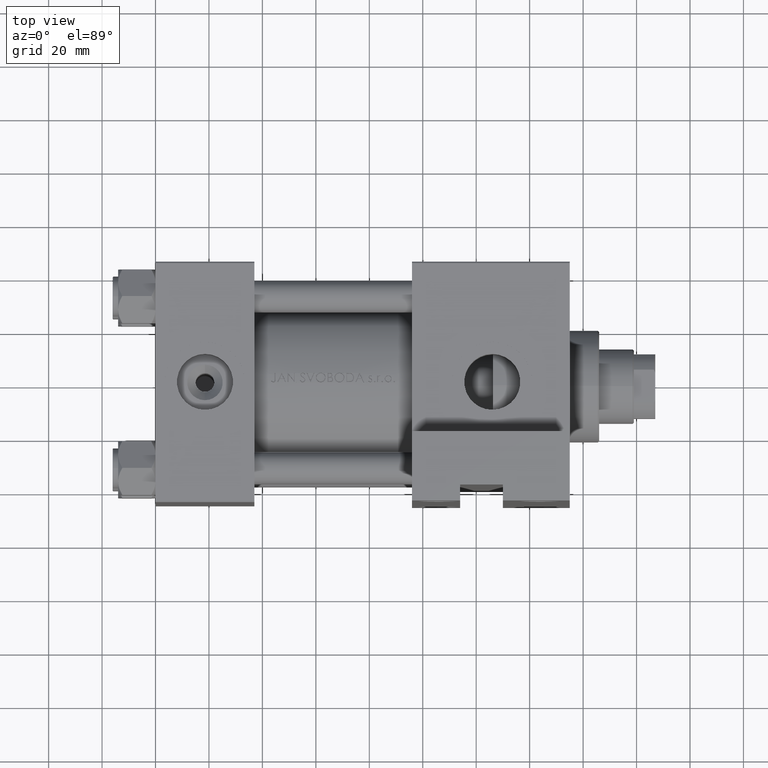
[diagram: clean part render]
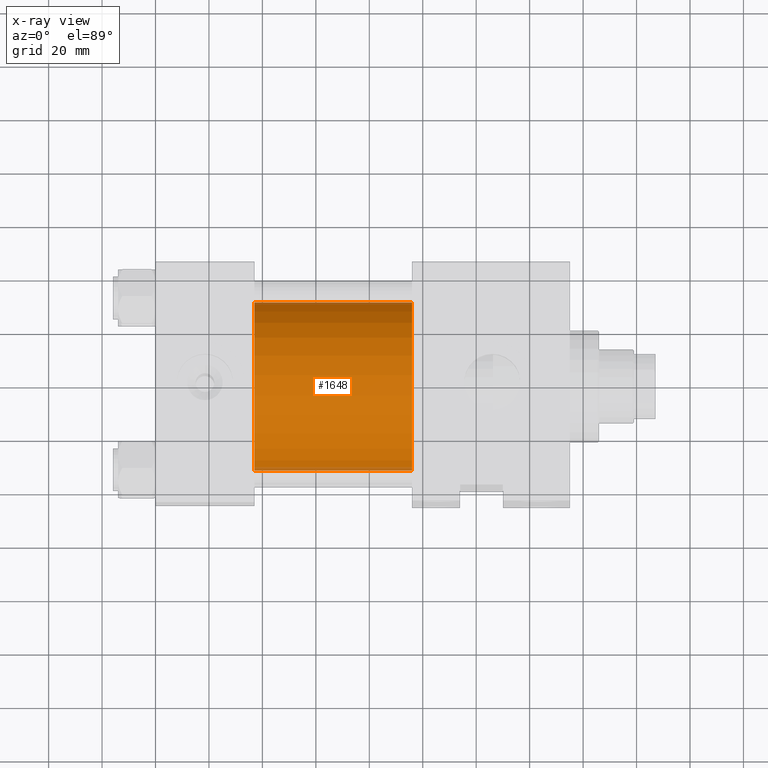
[diagram: x-ray — body ghosted, one internal face saturated and labeled with its STEP entity id]
A machine part, top view, then the same camera in x-ray: the body is ghosted and one INTERNAL B-rep face — a face not visible from any outside direction — is saturated and labeled: STEP entity #1648.
In plain terms, the highlighted cylindrical surface (partial cylindrical patch) has radius 31.5 mm, axis along (-1, -0, 0).
Its self-contained STEP definition (entity closure, byte-faithful):
#827 = CARTESIAN_POINT ( 'NONE',  ( 37.00000000000000000, 3.857637417314162689E-15, -32.50000000000000711 ) ) ;
#1648 = ADVANCED_FACE ( 'NONE', ( #48416 ), #25785, .F. ) ;
#2367 = ORIENTED_EDGE ( 'NONE', *, *, #48580, .T. ) ;
#5176 = EDGE_CURVE ( 'NONE', #29462, #35811, #31110, .T. ) ;
#5428 = ORIENTED_EDGE ( 'NONE', *, *, #18999, .T. ) ;
#7132 = CARTESIAN_POINT ( 'NONE',  ( 96.00000000000000000, 0.000000000000000000, 30.49999999999999289 ) ) ;
#7545 = VECTOR ( 'NONE', #10765, 1000.000000000000000 ) ;
#7900 = EDGE_CURVE ( 'NONE', #8711, #29462, #41578, .T. ) ;
#8711 = VERTEX_POINT ( 'NONE', #23624 ) ;
#9107 = CARTESIAN_POINT ( 'NONE',  ( 37.00000000000000000, 0.000000000000000000, -1.000000000000007772 ) ) ;
#10765 = DIRECTION ( 'NONE',  ( -1.000000000000000000, -0.000000000000000000, -0.000000000000000000 ) ) ;
#11168 = DIRECTION ( 'NONE',  ( 0.000000000000000000, 0.000000000000000000, -1.000000000000000000 ) ) ;
#11209 = CARTESIAN_POINT ( 'NONE',  ( 37.00000000000000000, 0.000000000000000000, 30.49999999999999289 ) ) ;
#13538 = LINE ( 'NONE', #29136, #7545 ) ;
#14127 = ORIENTED_EDGE ( 'NONE', *, *, #7900, .F. ) ;
#14210 = DIRECTION ( 'NONE',  ( 0.000000000000000000, 0.000000000000000000, 1.000000000000000000 ) ) ;
#18999 = EDGE_CURVE ( 'NONE', #33641, #35811, #13538, .T. ) ;
#20663 = DIRECTION ( 'NONE',  ( 0.000000000000000000, 0.000000000000000000, -1.000000000000000000 ) ) ;
#21403 = EDGE_LOOP ( 'NONE', ( #2367, #5428, #47159, #14127 ) ) ;
#22491 = DIRECTION ( 'NONE',  ( 1.000000000000000000, 0.000000000000000000, 0.000000000000000000 ) ) ;
#23624 = CARTESIAN_POINT ( 'NONE',  ( 96.00000000000000000, 0.000000000000000000, 30.49999999999999289 ) ) ;
#25785 = CYLINDRICAL_SURFACE ( 'NONE', #47027, 31.50000000000000000 ) ;
#26034 = CARTESIAN_POINT ( 'NONE',  ( 96.00000000000000000, 0.000000000000000000, -1.000000000000007772 ) ) ;
#27152 = VECTOR ( 'NONE', #37816, 1000.000000000000000 ) ;
#29136 = CARTESIAN_POINT ( 'NONE',  ( 96.00000000000000000, 3.857637417314162689E-15, -32.50000000000000711 ) ) ;
#29462 = VERTEX_POINT ( 'NONE', #11209 ) ;
#31110 = CIRCLE ( 'NONE', #33503, 31.50000000000000000 ) ;
#32656 = CIRCLE ( 'NONE', #38300, 31.50000000000000000 ) ;
#33503 = AXIS2_PLACEMENT_3D ( 'NONE', #9107, #39787, #20663 ) ;
#33641 = VERTEX_POINT ( 'NONE', #47831 ) ;
#35811 = VERTEX_POINT ( 'NONE', #827 ) ;
#37816 = DIRECTION ( 'NONE',  ( -1.000000000000000000, -0.000000000000000000, -0.000000000000000000 ) ) ;
#38300 = AXIS2_PLACEMENT_3D ( 'NONE', #49396, #22491, #11168 ) ;
#39787 = DIRECTION ( 'NONE',  ( 1.000000000000000000, 0.000000000000000000, 0.000000000000000000 ) ) ;
#41578 = LINE ( 'NONE', #7132, #27152 ) ;
#44153 = DIRECTION ( 'NONE',  ( -1.000000000000000000, -0.000000000000000000, -0.000000000000000000 ) ) ;
#47027 = AXIS2_PLACEMENT_3D ( 'NONE', #26034, #44153, #14210 ) ;
#47159 = ORIENTED_EDGE ( 'NONE', *, *, #5176, .F. ) ;
#47831 = CARTESIAN_POINT ( 'NONE',  ( 96.00000000000000000, 3.857637417314162689E-15, -32.50000000000000711 ) ) ;
#48416 = FACE_OUTER_BOUND ( 'NONE', #21403, .T. ) ;
#48580 = EDGE_CURVE ( 'NONE', #8711, #33641, #32656, .T. ) ;
#49396 = CARTESIAN_POINT ( 'NONE',  ( 96.00000000000000000, 0.000000000000000000, -1.000000000000007772 ) ) ;